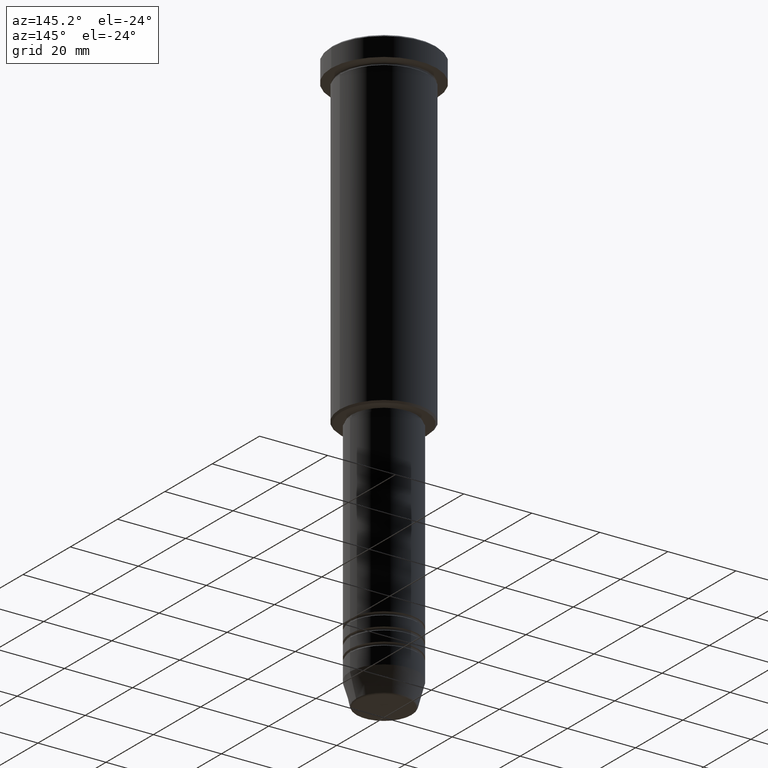
[diagram: clean part render]
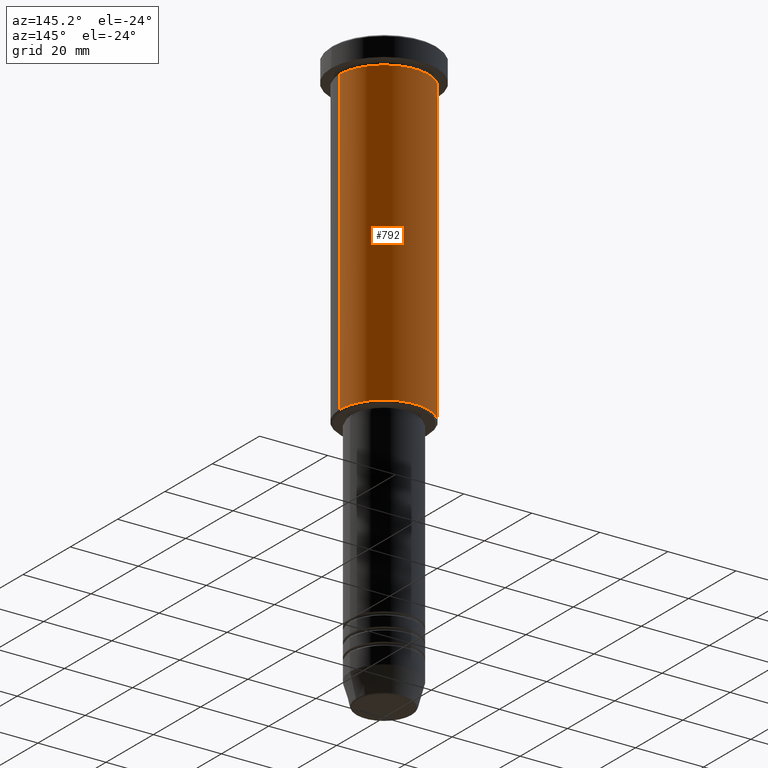
[diagram: same view with one face highlighted and labeled with its STEP entity id]
A machine part, auxiliary view. The second image highlights one B-rep face of the part: STEP entity #792.
In plain terms, the highlighted cylindrical surface (partial cylindrical patch) has radius 13 mm, axis along (-0, -0, 1).
Its self-contained STEP definition (entity closure, byte-faithful):
#131 = AXIS2_PLACEMENT_3D ( 'NONE', #341, #453, #729 ) ;
#147 = CARTESIAN_POINT ( 'NONE',  ( 0.000000000000000000, 0.000000000000000000, -6.999999999999995559 ) ) ;
#172 = VECTOR ( 'NONE', #274, 1000.000000000000000 ) ;
#181 = VERTEX_POINT ( 'NONE', #876 ) ;
#189 = EDGE_CURVE ( 'NONE', #967, #684, #828, .T. ) ;
#274 = DIRECTION ( 'NONE',  ( -0.000000000000000000, -0.000000000000000000, 1.000000000000000000 ) ) ;
#291 = AXIS2_PLACEMENT_3D ( 'NONE', #546, #647, #367 ) ;
#293 = EDGE_CURVE ( 'NONE', #376, #181, #790, .T. ) ;
#310 = CARTESIAN_POINT ( 'NONE',  ( 13.00000000000000178, 0.000000000000000000, -6.999999999999995559 ) ) ;
#341 = CARTESIAN_POINT ( 'NONE',  ( 0.000000000000000000, 0.000000000000000000, 0.000000000000000000 ) ) ;
#355 = ORIENTED_EDGE ( 'NONE', *, *, #662, .F. ) ;
#362 = LINE ( 'NONE', #1182, #172 ) ;
#367 = DIRECTION ( 'NONE',  ( -1.000000000000000000, 0.000000000000000000, 0.000000000000000000 ) ) ;
#372 = ORIENTED_EDGE ( 'NONE', *, *, #293, .T. ) ;
#376 = VERTEX_POINT ( 'NONE', #809 ) ;
#393 = EDGE_CURVE ( 'NONE', #181, #684, #362, .T. ) ;
#394 = ORIENTED_EDGE ( 'NONE', *, *, #189, .F. ) ;
#410 = EDGE_LOOP ( 'NONE', ( #372, #612, #394, #355 ) ) ;
#413 = LINE ( 'NONE', #970, #622 ) ;
#435 = DIRECTION ( 'NONE',  ( 1.000000000000000000, 0.000000000000000000, 0.000000000000000000 ) ) ;
#453 = DIRECTION ( 'NONE',  ( -0.000000000000000000, -0.000000000000000000, 1.000000000000000000 ) ) ;
#546 = CARTESIAN_POINT ( 'NONE',  ( 0.000000000000000000, 0.000000000000000000, -95.49999999999994316 ) ) ;
#552 = FACE_OUTER_BOUND ( 'NONE', #410, .T. ) ;
#603 = CARTESIAN_POINT ( 'NONE',  ( -13.00000000000000178, 1.592040838891559293E-15, -6.999999999999995559 ) ) ;
#612 = ORIENTED_EDGE ( 'NONE', *, *, #393, .T. ) ;
#622 = VECTOR ( 'NONE', #695, 1000.000000000000000 ) ;
#635 = CYLINDRICAL_SURFACE ( 'NONE', #131, 13.00000000000000178 ) ;
#647 = DIRECTION ( 'NONE',  ( -0.000000000000000000, -0.000000000000000000, 1.000000000000000000 ) ) ;
#662 = EDGE_CURVE ( 'NONE', #376, #967, #413, .T. ) ;
#684 = VERTEX_POINT ( 'NONE', #603 ) ;
#695 = DIRECTION ( 'NONE',  ( -0.000000000000000000, -0.000000000000000000, 1.000000000000000000 ) ) ;
#729 = DIRECTION ( 'NONE',  ( 1.000000000000000000, 0.000000000000000000, 0.000000000000000000 ) ) ;
#790 = CIRCLE ( 'NONE', #291, 13.00000000000000178 ) ;
#792 = ADVANCED_FACE ( 'NONE', ( #552 ), #635, .T. ) ;
#809 = CARTESIAN_POINT ( 'NONE',  ( 13.00000000000000178, 0.000000000000000000, -95.49999999999994316 ) ) ;
#828 = CIRCLE ( 'NONE', #866, 13.00000000000000178 ) ;
#866 = AXIS2_PLACEMENT_3D ( 'NONE', #147, #870, #435 ) ;
#870 = DIRECTION ( 'NONE',  ( -0.000000000000000000, -0.000000000000000000, 1.000000000000000000 ) ) ;
#876 = CARTESIAN_POINT ( 'NONE',  ( -13.00000000000000178, 1.592040838891559293E-15, -95.49999999999994316 ) ) ;
#967 = VERTEX_POINT ( 'NONE', #310 ) ;
#970 = CARTESIAN_POINT ( 'NONE',  ( 13.00000000000000178, 0.000000000000000000, 0.000000000000000000 ) ) ;
#1182 = CARTESIAN_POINT ( 'NONE',  ( -13.00000000000000178, 1.592040838891559293E-15, 0.000000000000000000 ) ) ;